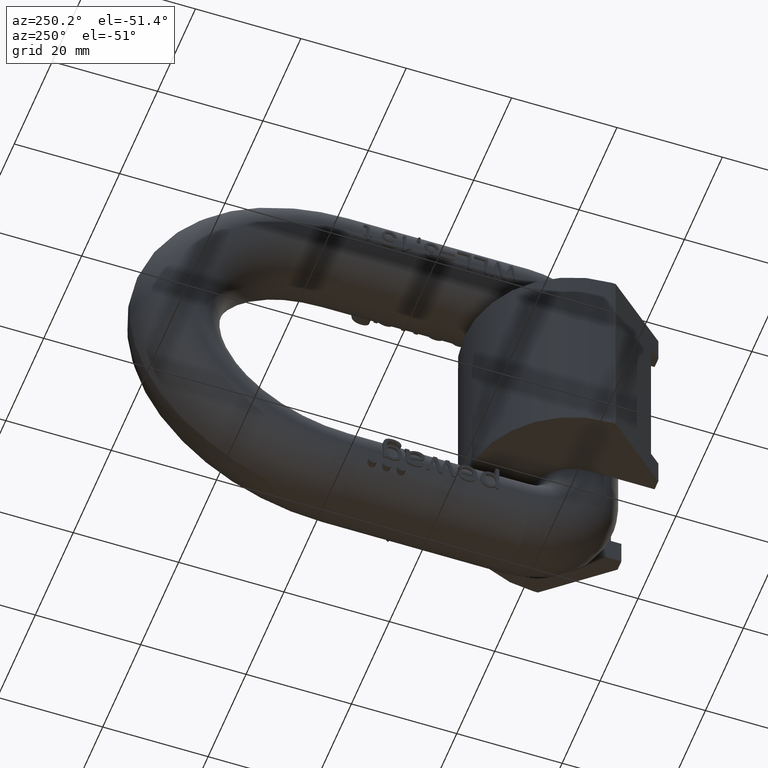
[diagram: clean part render]
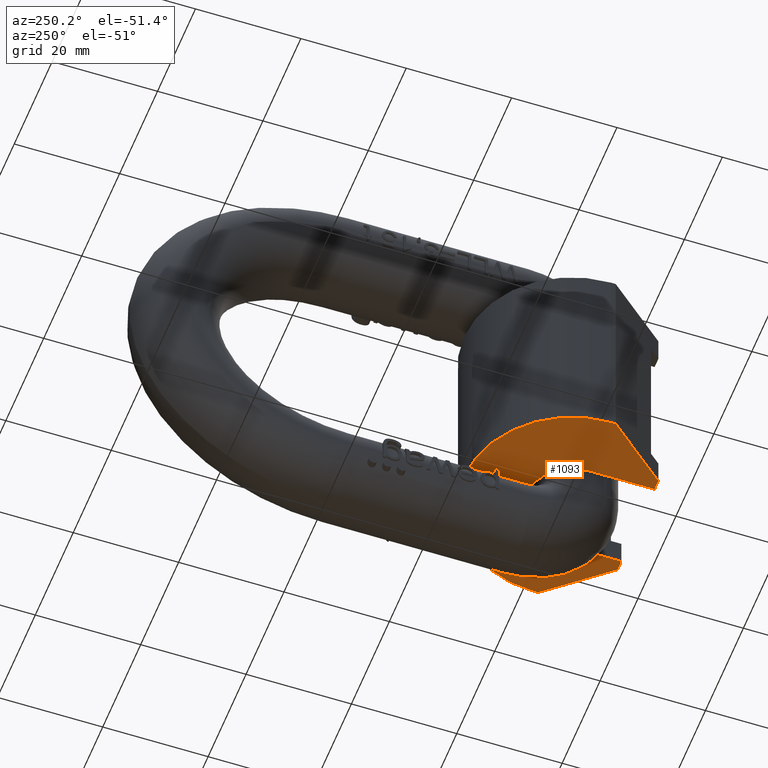
[diagram: same view with one face highlighted and labeled with its STEP entity id]
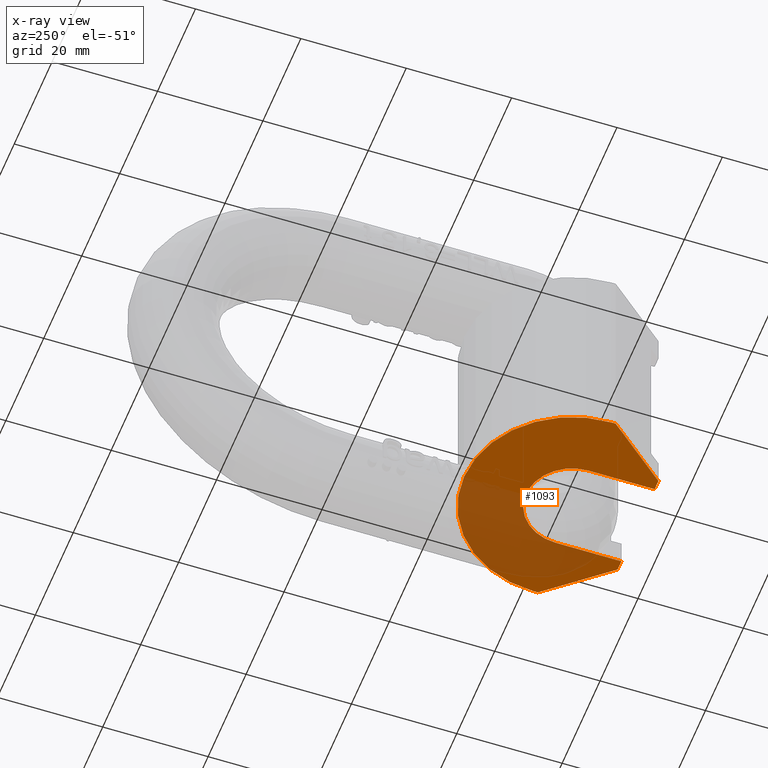
[diagram: x-ray of the same camera — body ghosted, the highlighted face saturated]
A machine part, auxiliary view. The second image highlights one B-rep face of the part: STEP entity #1093.
The next image is the same camera in x-ray: the body ghosted, the highlighted face saturated — about 41% of this face is hidden behind the body in this view.
In plain terms, the highlighted planar face has unit normal (0, 0, -1).
Its self-contained STEP definition (entity closure, byte-faithful):
#1093=ADVANCED_FACE('',(#1753),#1523,.T.);
#1523=PLANE('',#8012);
#1753=FACE_OUTER_BOUND('',#2163,.T.);
#2163=EDGE_LOOP('',(#2722,#2723,#2724,#2725,#2726,#2727,#2728,#2729,#2730,
#2731));
#2650=CIRCLE('',#8010,20.5);
#2651=CIRCLE('',#8011,8.75);
#2722=ORIENTED_EDGE('',*,*,#5752,.F.);
#2723=ORIENTED_EDGE('',*,*,#5753,.T.);
#2724=ORIENTED_EDGE('',*,*,#5754,.F.);
#2725=ORIENTED_EDGE('',*,*,#5755,.F.);
#2726=ORIENTED_EDGE('',*,*,#5756,.F.);
#2727=ORIENTED_EDGE('',*,*,#5757,.T.);
#2728=ORIENTED_EDGE('',*,*,#5758,.F.);
#2729=ORIENTED_EDGE('',*,*,#5759,.F.);
#2730=ORIENTED_EDGE('',*,*,#5760,.F.);
#2731=ORIENTED_EDGE('',*,*,#5761,.F.);
#4990=VERTEX_POINT('',#9802);
#4991=VERTEX_POINT('',#9803);
#4992=VERTEX_POINT('',#9805);
#4993=VERTEX_POINT('',#9807);
#4994=VERTEX_POINT('',#9809);
#4995=VERTEX_POINT('',#9811);
#4996=VERTEX_POINT('',#9813);
#4997=VERTEX_POINT('',#9815);
#4998=VERTEX_POINT('',#9817);
#4999=VERTEX_POINT('',#9819);
#5752=EDGE_CURVE('',#4990,#4991,#6884,.T.);
#5753=EDGE_CURVE('',#4990,#4992,#6885,.T.);
#5754=EDGE_CURVE('',#4993,#4992,#6886,.T.);
#5755=EDGE_CURVE('',#4994,#4993,#2650,.T.);
#5756=EDGE_CURVE('',#4995,#4994,#6887,.T.);
#5757=EDGE_CURVE('',#4995,#4996,#6888,.T.);
#5758=EDGE_CURVE('',#4997,#4996,#6889,.T.);
#5759=EDGE_CURVE('',#4998,#4997,#6890,.T.);
#5760=EDGE_CURVE('',#4999,#4998,#2651,.T.);
#5761=EDGE_CURVE('',#4991,#4999,#6891,.T.);
#6884=LINE('',#9801,#7360);
#6885=LINE('',#9804,#7361);
#6886=LINE('',#9806,#7362);
#6887=LINE('',#9810,#7363);
#6888=LINE('',#9812,#7364);
#6889=LINE('',#9814,#7365);
#6890=LINE('',#9816,#7366);
#6891=LINE('',#9820,#7367);
#7360=VECTOR('',#8395,1.);
#7361=VECTOR('',#8396,1.);
#7362=VECTOR('',#8397,1.);
#7363=VECTOR('',#8400,1.);
#7364=VECTOR('',#8401,1.);
#7365=VECTOR('',#8402,1.);
#7366=VECTOR('',#8403,1.);
#7367=VECTOR('',#8406,1.);
#8010=AXIS2_PLACEMENT_3D('',#9808,#8398,#8399);
#8011=AXIS2_PLACEMENT_3D('',#9818,#8404,#8405);
#8012=AXIS2_PLACEMENT_3D('',#9821,#8407,#8408);
#8395=DIRECTION('',(1.,3.35685491583409E-32,0.));
#8396=DIRECTION('',(-0.64278760968654,0.766044443118978,0.));
#8397=DIRECTION('',(0.,-1.,0.));
#8398=DIRECTION('',(0.,0.,1.));
#8399=DIRECTION('',(1.,0.,0.));
#8400=DIRECTION('',(0.,1.,0.));
#8401=DIRECTION('',(-0.64278760968654,-0.766044443118978,0.));
#8402=DIRECTION('',(1.,-5.03528237375114E-32,0.));
#8403=DIRECTION('',(1.38777878078145E-16,-1.,0.));
#8404=DIRECTION('',(0.,0.,-1.));
#8405=DIRECTION('',(1.,1.98254111540207E-16,0.));
#8406=DIRECTION('',(1.38777878078145E-16,1.,0.));
#8407=DIRECTION('',(0.,0.,-1.));
#8408=DIRECTION('',(-1.,0.,0.));
#9801=CARTESIAN_POINT('',(-20.5,-3.94430452610506E-31,-20.));
#9802=CARTESIAN_POINT('',(-10.75,7.70371977754894E-31,-20.));
#9803=CARTESIAN_POINT('',(-8.75,0.,-20.));
#9804=CARTESIAN_POINT('',(-12.463407411286,2.04195943797769,-20.));
#9805=CARTESIAN_POINT('',(-20.5,11.6195975277935,-20.));
#9806=CARTESIAN_POINT('',(-20.5,12.5,-20.));
#9807=CARTESIAN_POINT('',(-20.5,12.5,-20.));
#9808=CARTESIAN_POINT('',(0.,12.5,-20.));
#9809=CARTESIAN_POINT('',(20.5,12.5,-20.));
#9810=CARTESIAN_POINT('',(20.5,0.,-20.));
#9811=CARTESIAN_POINT('',(20.5,11.6195975277935,-20.));
#9812=CARTESIAN_POINT('',(12.463407411286,2.04195943797769,-20.));
#9813=CARTESIAN_POINT('',(10.75,0.,-20.));
#9814=CARTESIAN_POINT('',(8.75,1.97215226305253E-31,-20.));
#9815=CARTESIAN_POINT('',(8.75,0.,-20.));
#9816=CARTESIAN_POINT('',(8.75,12.5,-20.));
#9817=CARTESIAN_POINT('',(8.75,12.5,-20.));
#9818=CARTESIAN_POINT('',(0.,12.5,-20.));
#9819=CARTESIAN_POINT('',(-8.75,12.5,-20.));
#9820=CARTESIAN_POINT('',(-8.75,0.,-20.));
#9821=CARTESIAN_POINT('',(0.,12.5,-20.));